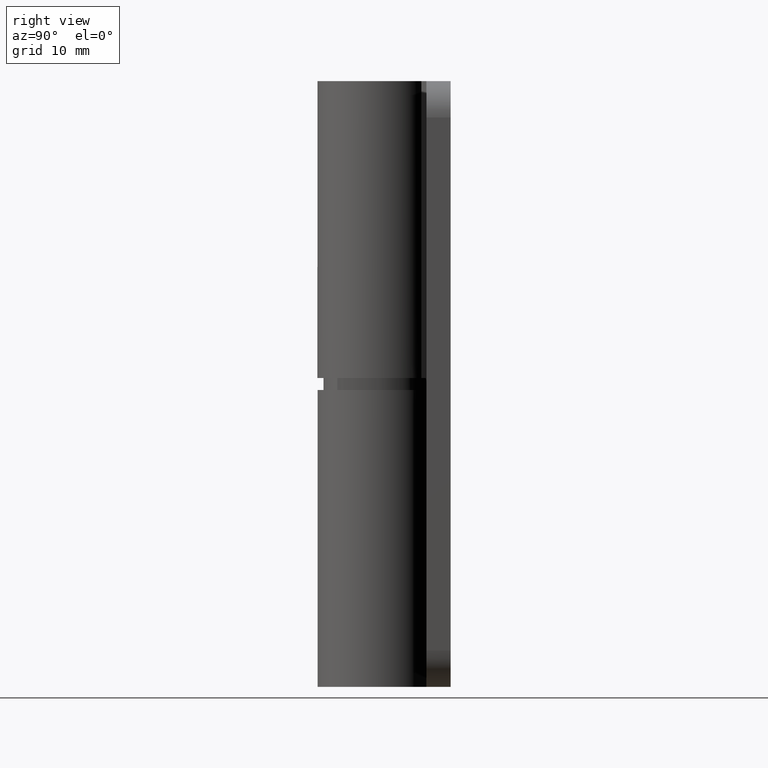
[diagram: clean part render]
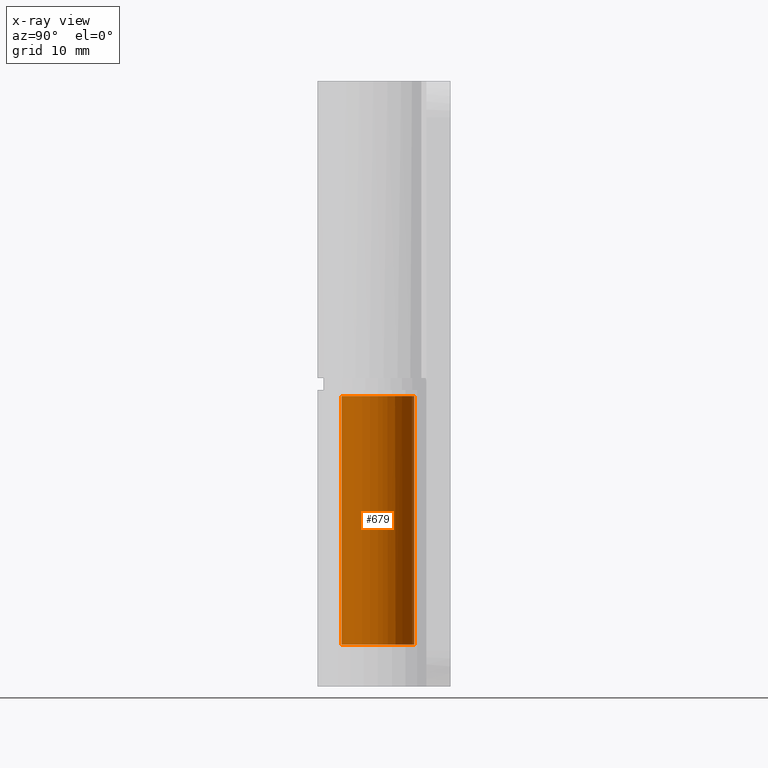
[diagram: x-ray — body ghosted, one internal face saturated and labeled with its STEP entity id]
A machine part, right view, then the same camera in x-ray: the body is ghosted and one INTERNAL B-rep face — a face not visible from any outside direction — is saturated and labeled: STEP entity #679.
In plain terms, the highlighted face is a freeform B-spline surface patch.
Its self-contained STEP definition (entity closure, byte-faithful):
#503=CARTESIAN_POINT('',(-0.209261452899107,2.992578198232645,3.500000000095439));
#504=VERTEX_POINT('',#503);
#525=CARTESIAN_POINT('',(0.209261452899107,-2.992578198232645,3.500000000095439));
#526=VERTEX_POINT('',#525);
#572=CARTESIAN_POINT('',(2.999999999999885,0.0,3.500000000094105));
#573=VERTEX_POINT('',#572);
#574=CARTESIAN_POINT('',(-0.209261452899107,2.992578198232646,3.500000000095439));
#575=CARTESIAN_POINT('',(-0.104754469880542,2.999887902837108,3.500000000095418));
#576=CARTESIAN_POINT('',(0.000007699466958,2.999889892492410,3.500000000095394));
#577=CARTESIAN_POINT('',(3.000003715297708,2.999946868765588,3.500000000094725));
#578=CARTESIAN_POINT('',(2.999999999999885,0.0,3.500000000094105));
#586=(BOUNDED_CURVE()B_SPLINE_CURVE(2,(#574,#575,#576,#577,#578),.UNSPECIFIED.,.F.,.U.)B_SPLINE_CURVE_WITH_KNOTS((3,2,3),(0.237829682996679,0.250000000000000,0.500000000000000),.UNSPECIFIED.)CURVE()GEOMETRIC_REPRESENTATION_ITEM()RATIONAL_B_SPLINE_CURVE((0.972871408708415,0.985741586715669,1.0,0.707106781186548,1.0))REPRESENTATION_ITEM(''));
#587=EDGE_CURVE('',#504,#573,#586,.T.);
#589=CARTESIAN_POINT('',(2.999999999999885,0.0,3.500000000094105));
#590=CARTESIAN_POINT('',(2.986942082852662,-2.774084573482278,3.500000000094771));
#591=CARTESIAN_POINT('',(0.209261452899107,-2.992578198232646,3.500000000095439));
#599=(BOUNDED_CURVE()B_SPLINE_CURVE(2,(#589,#590,#591),.UNSPECIFIED.,.F.,.U.)B_SPLINE_CURVE_WITH_KNOTS((3,3),(0.500000000000000,0.736331300632193),.UNSPECIFIED.)CURVE()GEOMETRIC_REPRESENTATION_ITEM()RATIONAL_B_SPLINE_CURVE((1.0,0.723120658605870,0.969723356170617))REPRESENTATION_ITEM(''));
#600=EDGE_CURVE('',#573,#526,#599,.T.);
#609=CARTESIAN_POINT('',(-0.251108325279501,2.990247618052727,24.512499999997647));
#610=CARTESIAN_POINT('',(-0.217287459536960,2.992316190817299,24.512499999997644));
#611=CARTESIAN_POINT('',(2.811258776660922,3.177550013870049,24.512499999997658));
#612=CARTESIAN_POINT('',(2.994404395265486,0.183145618604564,24.512499999997651));
#613=CARTESIAN_POINT('',(3.177550013870049,-2.811258776660922,24.512499999997658));
#614=CARTESIAN_POINT('',(0.161968874245944,-2.995699620436717,24.512499999997662));
#615=CARTESIAN_POINT('',(0.140915836210974,-2.996987279405060,24.512499999997644));
#616=CARTESIAN_POINT('',(-0.251108325279501,2.990247618052727,2.974687500096515));
#617=CARTESIAN_POINT('',(-0.217287459536960,2.992316190817299,2.974687500096515));
#618=CARTESIAN_POINT('',(2.811258776660922,3.177550013870049,2.974687500096514));
#619=CARTESIAN_POINT('',(2.994404395265486,0.183145618604564,2.974687500096515));
#620=CARTESIAN_POINT('',(3.177550013870049,-2.811258776660922,2.974687500096514));
#621=CARTESIAN_POINT('',(0.161968874245944,-2.995699620436717,2.974687500096516));
#622=CARTESIAN_POINT('',(0.140915836210974,-2.996987279405060,2.974687500096513));
#630=(BOUNDED_SURFACE()B_SPLINE_SURFACE(2,1,((#609,#616),(#610,#617),(#611,#618),(#612,#619),(#613,#620),(#614,#621),(#615,#622)),.UNSPECIFIED.,.F.,.F.,.U.)B_SPLINE_SURFACE_WITH_KNOTS((3,1,2,1,3),(2,2),(0.0,0.080529127220097,5.051091875697046,10.021654624173991,10.071513602350800),(0.0,21.537812499901140),.UNSPECIFIED.)GEOMETRIC_REPRESENTATION_ITEM()RATIONAL_B_SPLINE_SURFACE(((1.009490448656728,1.009490448656728),(1.004745224328364,1.004745224328364),(0.707106781186548,0.707106781186548),(1.0,1.0),(0.707106781186548,0.707106781186548),(1.002937968464321,1.002937968464321),(1.005875936928643,1.005875936928643)))REPRESENTATION_ITEM('')SURFACE());
#631=CARTESIAN_POINT('',(-0.183145618649421,2.994404395262742,24.0));
#632=VERTEX_POINT('',#631);
#633=CARTESIAN_POINT('',(-0.183145618649421,2.994404395262742,24.0));
#634=CARTESIAN_POINT('',(-0.209261452899107,2.992578198232645,3.500000000095439));
#635=QUASI_UNIFORM_CURVE('',1,(#633,#634),.UNSPECIFIED.,.F.,.U.);
#636=EDGE_CURVE('',#632,#504,#635,.T.);
#637=ORIENTED_EDGE('',*,*,#636,.F.);
#638=CARTESIAN_POINT('',(2.999999999999885,0.0,24.0));
#639=VERTEX_POINT('',#638);
#640=CARTESIAN_POINT('',(-0.183145618649420,2.994404395262742,24.0));
#641=CARTESIAN_POINT('',(-0.091658289918254,2.999999999999885,24.000000000000004));
#642=CARTESIAN_POINT('',(0.0,2.999999999999885,24.0));
#643=CARTESIAN_POINT('',(2.999999999999885,2.999999999999885,23.999999999999996));
#644=CARTESIAN_POINT('',(2.999999999999885,0.0,24.0));
#652=(BOUNDED_CURVE()B_SPLINE_CURVE(2,(#640,#641,#642,#643,#644),.UNSPECIFIED.,.F.,.U.)B_SPLINE_CURVE_WITH_KNOTS((3,2,3),(0.239332962239384,0.250000000000000,0.500000000000000),.UNSPECIFIED.)CURVE()GEOMETRIC_REPRESENTATION_ITEM()RATIONAL_B_SPLINE_CURVE((0.976072041667662,0.987502787900354,1.0,0.707106781186548,1.0))REPRESENTATION_ITEM(''));
#653=EDGE_CURVE('',#632,#639,#652,.T.);
#654=ORIENTED_EDGE('',*,*,#653,.T.);
#655=CARTESIAN_POINT('',(0.183145618649420,-2.994404395262742,24.0));
#656=VERTEX_POINT('',#655);
#657=CARTESIAN_POINT('',(2.999999999999885,0.0,24.0));
#658=CARTESIAN_POINT('',(2.999999999999884,-2.822118200674621,24.0));
#659=CARTESIAN_POINT('',(0.183145618649421,-2.994404395262743,24.000000000000004));
#667=(BOUNDED_CURVE()B_SPLINE_CURVE(2,(#657,#658,#659),.UNSPECIFIED.,.F.,.U.)B_SPLINE_CURVE_WITH_KNOTS((3,3),(0.500000000000000,0.739332962239384),.UNSPECIFIED.)CURVE()GEOMETRIC_REPRESENTATION_ITEM()RATIONAL_B_SPLINE_CURVE((1.0,0.719603993286194,0.976072041667662))REPRESENTATION_ITEM(''));
#668=EDGE_CURVE('',#639,#656,#667,.T.);
#669=ORIENTED_EDGE('',*,*,#668,.T.);
#670=CARTESIAN_POINT('',(0.183145618649420,-2.994404395262742,24.0));
#671=CARTESIAN_POINT('',(0.209261452899107,-2.992578198232645,3.500000000095439));
#672=QUASI_UNIFORM_CURVE('',1,(#670,#671),.UNSPECIFIED.,.F.,.U.);
#673=EDGE_CURVE('',#656,#526,#672,.T.);
#674=ORIENTED_EDGE('',*,*,#673,.T.);
#675=ORIENTED_EDGE('',*,*,#600,.F.);
#676=ORIENTED_EDGE('',*,*,#587,.F.);
#677=EDGE_LOOP('',(#637,#654,#669,#674,#675,#676));
#678=FACE_OUTER_BOUND('',#677,.T.);
#679=ADVANCED_FACE('',(#678),#630,.T.);